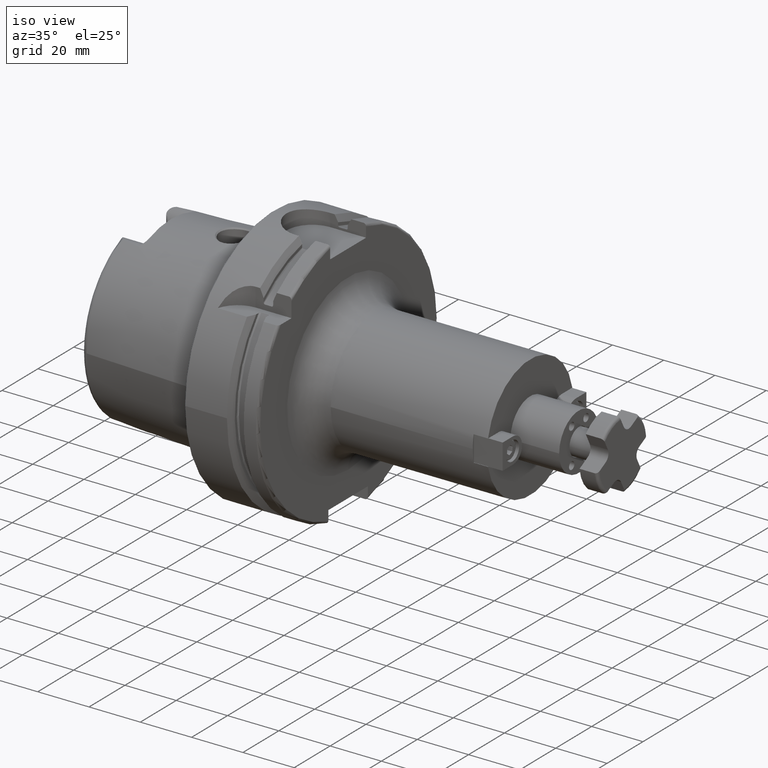
[diagram: clean part render]
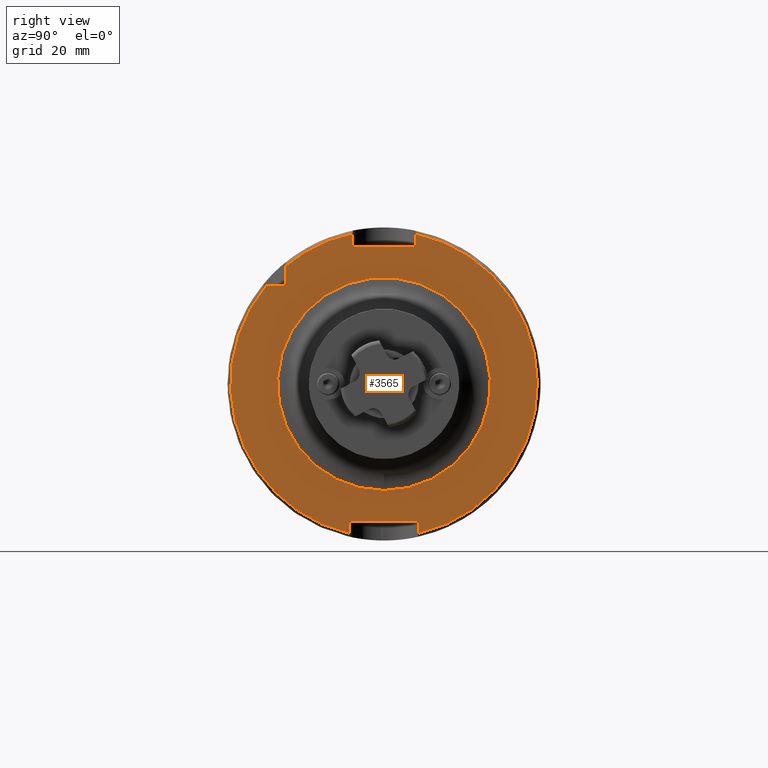
[diagram: tour spotlight — one face highlighted and labeled with its STEP entity id]
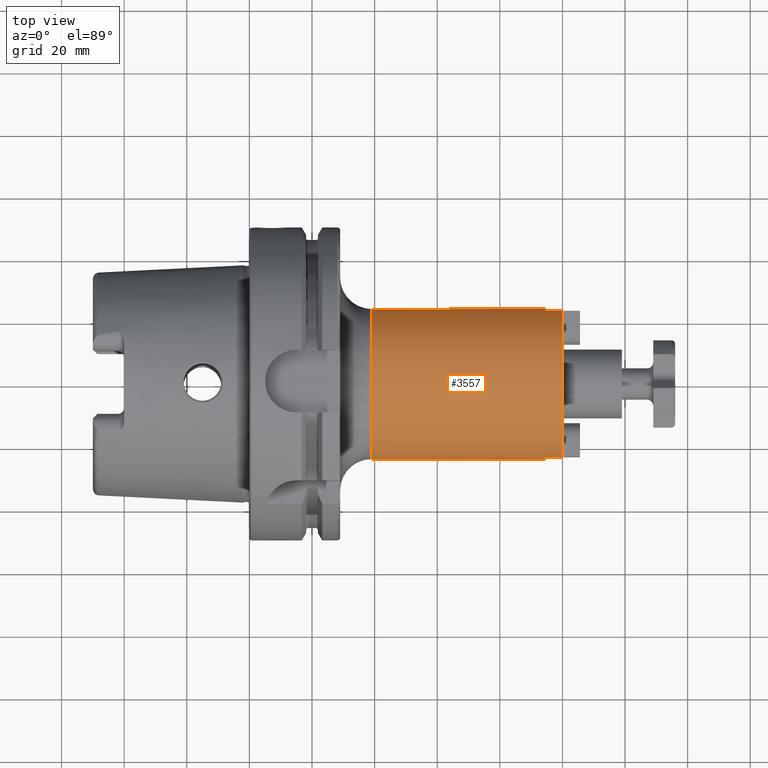
[diagram: tour spotlight — one face highlighted and labeled with its STEP entity id]
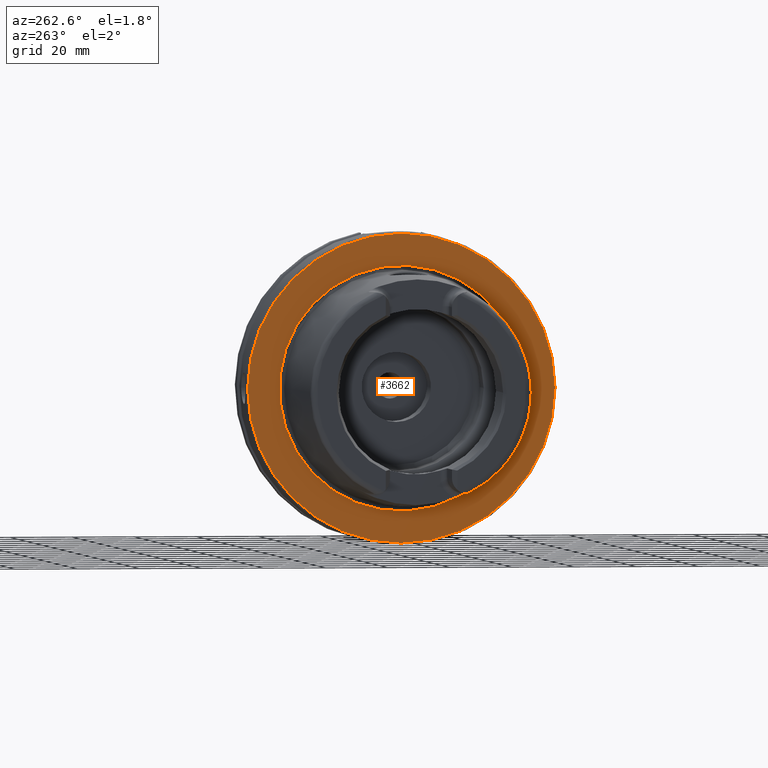
[diagram: tour spotlight — one face highlighted and labeled with its STEP entity id]
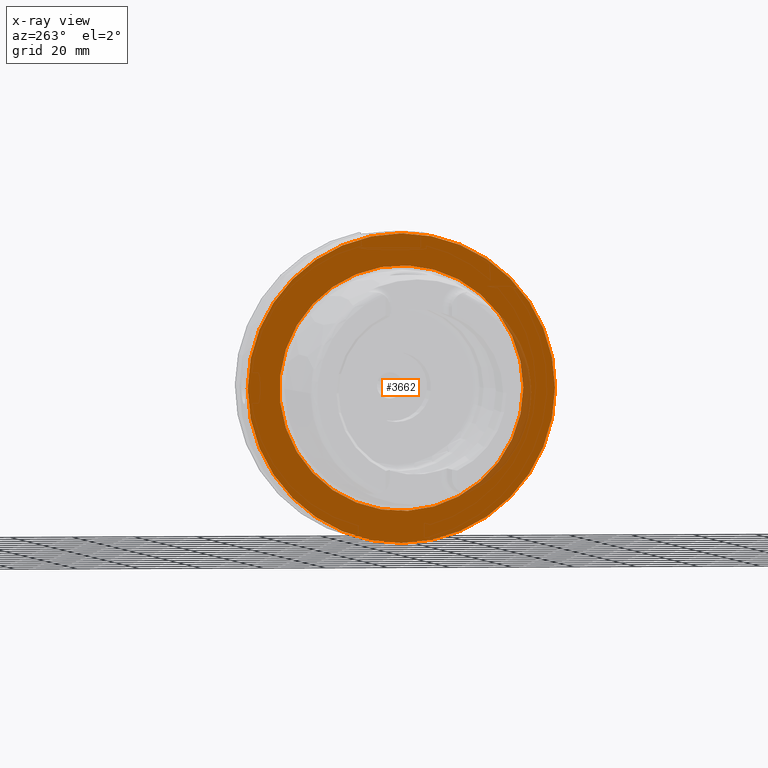
[diagram: x-ray of the same camera — body ghosted, this tour face saturated]
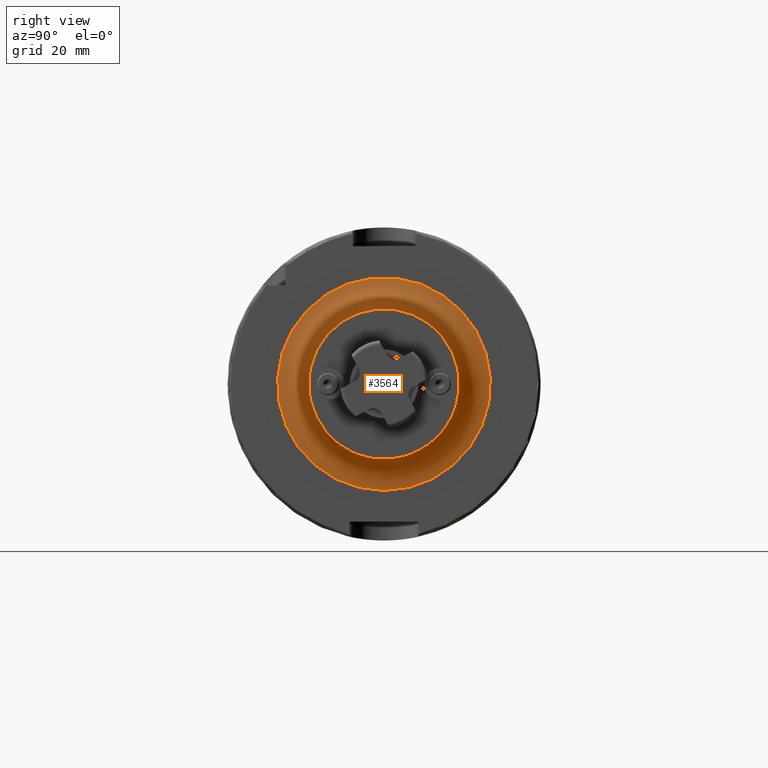
[diagram: tour spotlight — one face highlighted and labeled with its STEP entity id]
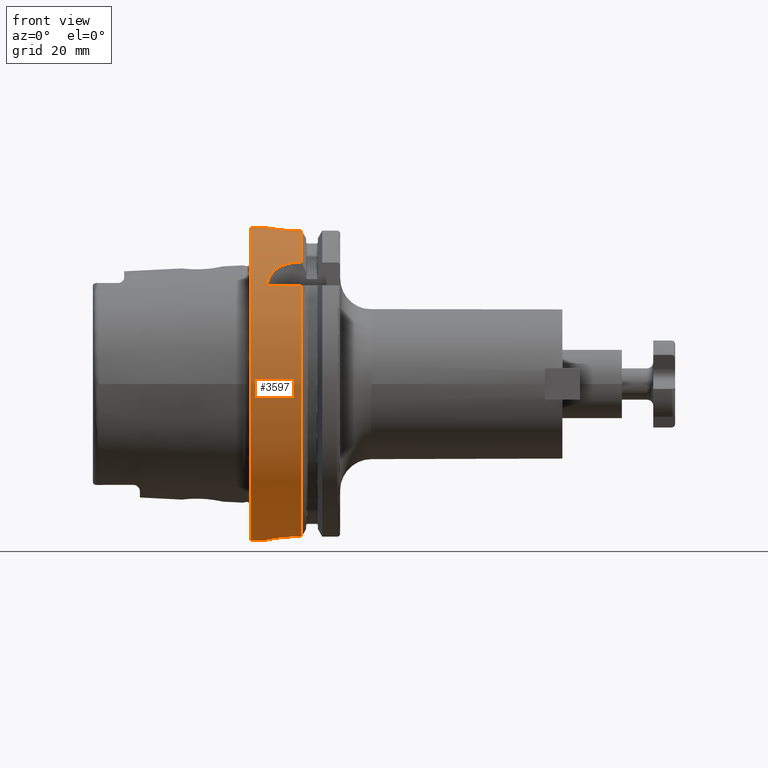
[diagram: tour spotlight — one face highlighted and labeled with its STEP entity id]
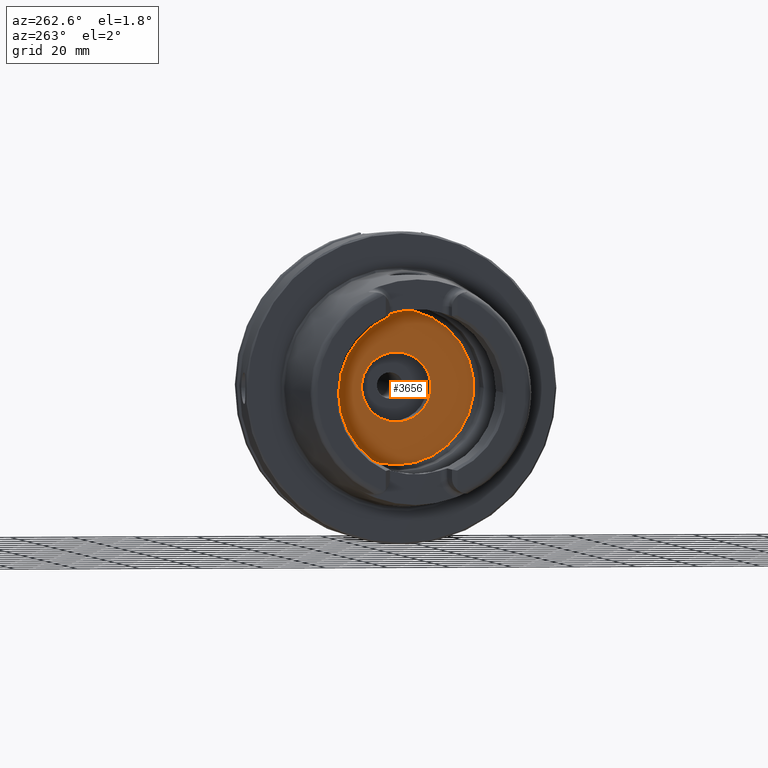
[diagram: tour spotlight — one face highlighted and labeled with its STEP entity id]
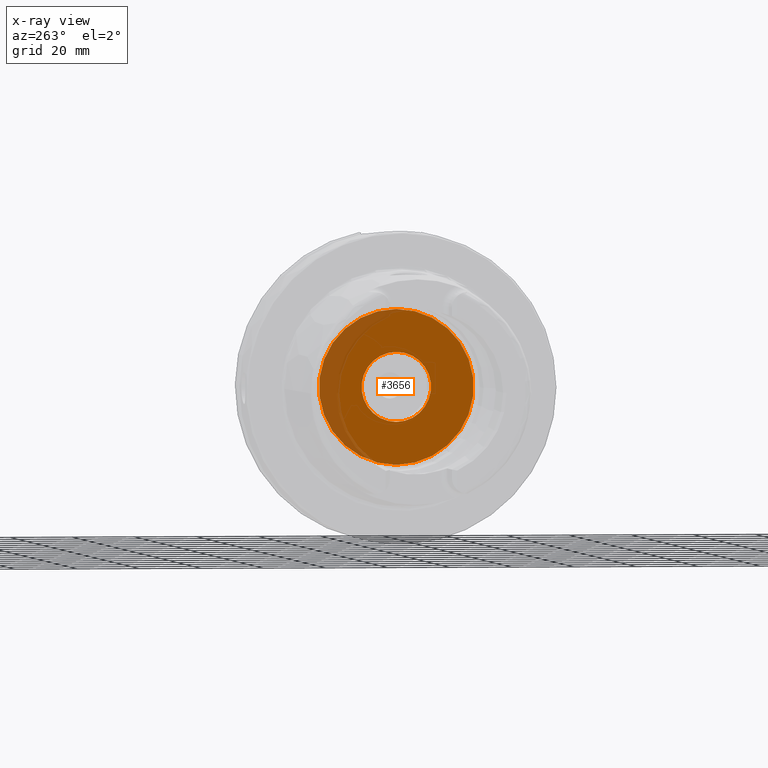
[diagram: x-ray of the same camera — body ghosted, this tour face saturated]
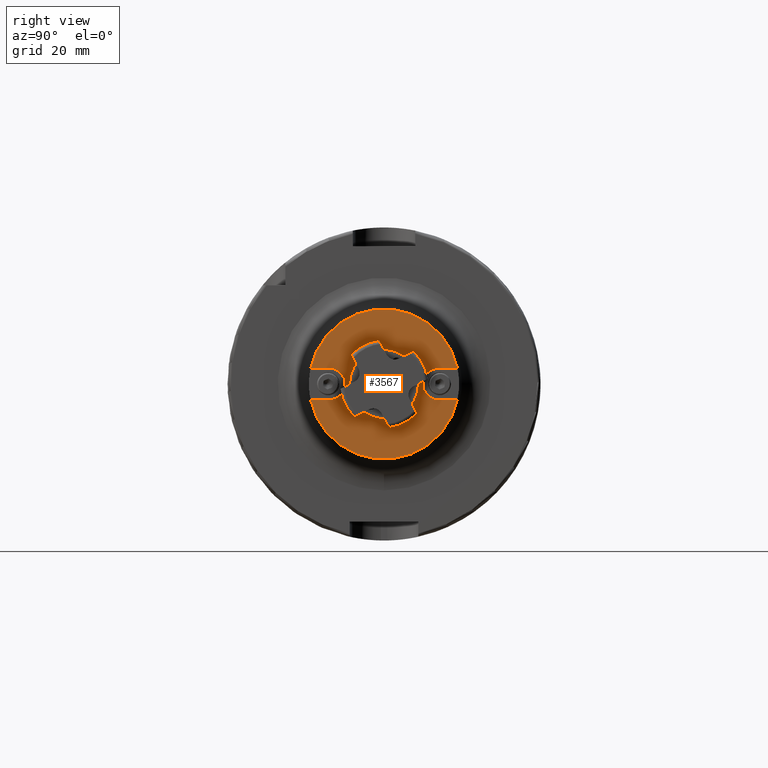
[diagram: tour spotlight — one face highlighted and labeled with its STEP entity id]
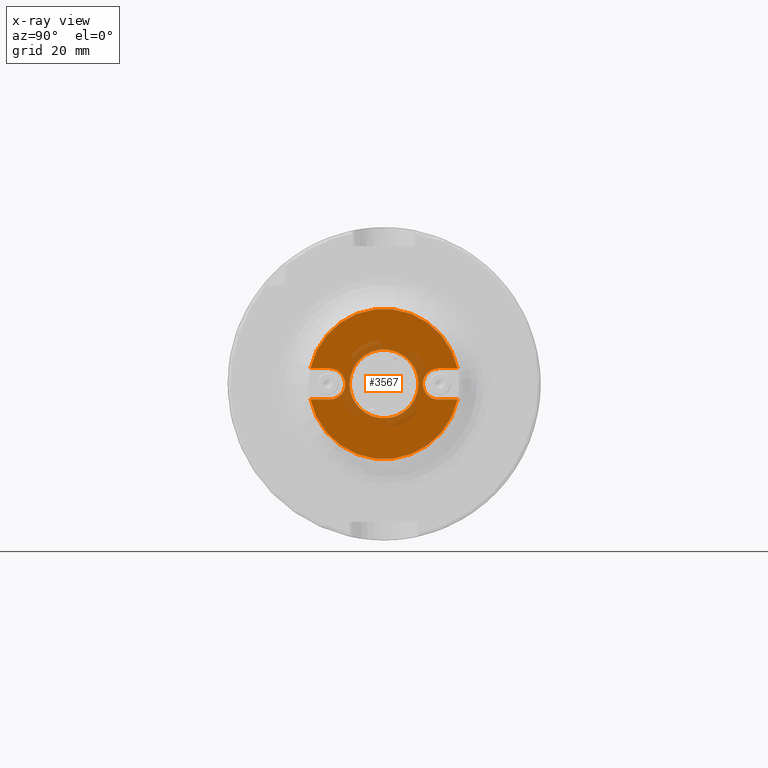
[diagram: x-ray of the same camera — body ghosted, this tour face saturated]
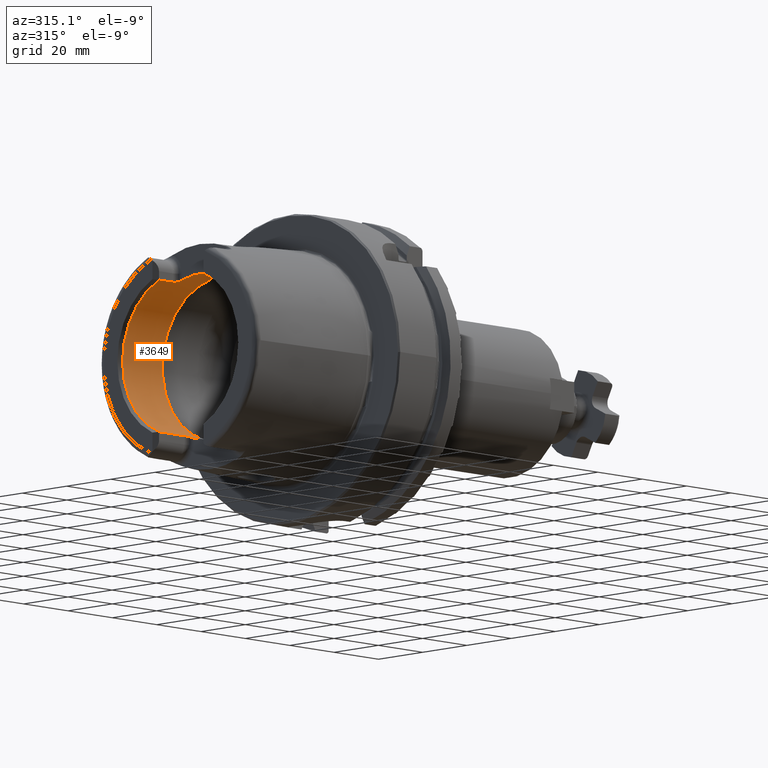
[diagram: tour spotlight — one face highlighted and labeled with its STEP entity id]
A machine part: a face-by-face anatomy tour. The part has 205 B-rep faces; the first image is the clean iso view, then the 8 largest visible faces are spotlighted one at a time (largest first), each with its STEP entity span.

Face 1 — right view, entity #3565. In plain terms, the highlighted planar face has unit normal (1, 0, 0).
Definition (entity closure, byte-faithful):
#676=FACE_BOUND('',#1029,.T.);
#703=PLANE('',#3971);
#845=FACE_OUTER_BOUND('',#1028,.T.);
#1028=EDGE_LOOP('',(#2682,#2683,#2684,#2685,#2686,#2687,#2688,#2689,#2690,
#2691,#2692));
#1029=EDGE_LOOP('',(#2693));
#1237=LINE('',#5623,#1427);
#1238=LINE('',#5627,#1428);
#1239=LINE('',#5629,#1429);
#1240=LINE('',#5631,#1430);
#1241=LINE('',#5635,#1431);
#1242=LINE('',#5637,#1432);
#1243=LINE('',#5639,#1433);
#1244=LINE('',#5642,#1434);
#1427=VECTOR('',#4515,10.);
#1428=VECTOR('',#4518,10.);
#1429=VECTOR('',#4519,10.);
#1430=VECTOR('',#4520,10.);
#1431=VECTOR('',#4523,10.);
#1432=VECTOR('',#4524,10.);
#1433=VECTOR('',#4525,10.);
#1434=VECTOR('',#4528,10.);
#1612=CIRCLE('',#3970,34.);
#1613=CIRCLE('',#3972,49.);
#1614=CIRCLE('',#3973,49.);
#1615=CIRCLE('',#3974,49.);
#1848=VERTEX_POINT('',#5617);
#1849=VERTEX_POINT('',#5621);
#1850=VERTEX_POINT('',#5622);
#1851=VERTEX_POINT('',#5624);
#1852=VERTEX_POINT('',#5626);
#1853=VERTEX_POINT('',#5628);
#1854=VERTEX_POINT('',#5630);
#1855=VERTEX_POINT('',#5632);
#1856=VERTEX_POINT('',#5634);
#1857=VERTEX_POINT('',#5636);
#1858=VERTEX_POINT('',#5638);
#1859=VERTEX_POINT('',#5640);
#2173=EDGE_CURVE('',#1848,#1848,#1612,.T.);
#2174=EDGE_CURVE('',#1849,#1850,#1237,.T.);
#2175=EDGE_CURVE('',#1850,#1851,#1613,.T.);
#2176=EDGE_CURVE('',#1851,#1852,#1238,.T.);
#2177=EDGE_CURVE('',#1852,#1853,#1239,.T.);
#2178=EDGE_CURVE('',#1853,#1854,#1240,.T.);
#2179=EDGE_CURVE('',#1854,#1855,#1614,.T.);
#2180=EDGE_CURVE('',#1855,#1856,#1241,.T.);
#2181=EDGE_CURVE('',#1856,#1857,#1242,.T.);
#2182=EDGE_CURVE('',#1857,#1858,#1243,.T.);
#2183=EDGE_CURVE('',#1858,#1859,#1615,.T.);
#2184=EDGE_CURVE('',#1859,#1849,#1244,.T.);
#2682=ORIENTED_EDGE('',*,*,#2174,.T.);
#2683=ORIENTED_EDGE('',*,*,#2175,.T.);
#2684=ORIENTED_EDGE('',*,*,#2176,.T.);
#2685=ORIENTED_EDGE('',*,*,#2177,.T.);
#2686=ORIENTED_EDGE('',*,*,#2178,.T.);
#2687=ORIENTED_EDGE('',*,*,#2179,.T.);
#2688=ORIENTED_EDGE('',*,*,#2180,.T.);
#2689=ORIENTED_EDGE('',*,*,#2181,.T.);
#2690=ORIENTED_EDGE('',*,*,#2182,.T.);
#2691=ORIENTED_EDGE('',*,*,#2183,.T.);
#2692=ORIENTED_EDGE('',*,*,#2184,.T.);
#2693=ORIENTED_EDGE('',*,*,#2173,.F.);
#3565=ADVANCED_FACE('',(#845,#676),#703,.T.);
#3970=AXIS2_PLACEMENT_3D('',#5619,#4511,#4512);
#3971=AXIS2_PLACEMENT_3D('',#5620,#4513,#4514);
#3972=AXIS2_PLACEMENT_3D('',#5625,#4516,#4517);
#3973=AXIS2_PLACEMENT_3D('',#5633,#4521,#4522);
#3974=AXIS2_PLACEMENT_3D('',#5641,#4526,#4527);
#4511=DIRECTION('center_axis',(1.,0.,0.));
#4512=DIRECTION('ref_axis',(0.,-1.,-1.22464679914735E-16));
#4513=DIRECTION('center_axis',(1.,0.,0.));
#4514=DIRECTION('ref_axis',(0.,0.,-1.));
#4515=DIRECTION('',(0.,-1.,0.));
#4516=DIRECTION('center_axis',(1.,0.,0.));
#4517=DIRECTION('ref_axis',(0.,0.,-1.));
#4518=DIRECTION('',(0.,0.,1.));
#4519=DIRECTION('',(0.,1.,0.));
#4520=DIRECTION('',(0.,0.,-1.));
#4521=DIRECTION('center_axis',(1.,0.,0.));
#4522=DIRECTION('ref_axis',(0.,0.,-1.));
#4523=DIRECTION('',(0.,0.,-1.));
#4524=DIRECTION('',(0.,-1.,0.));
#4525=DIRECTION('',(0.,0.,1.));
#4526=DIRECTION('center_axis',(1.,0.,0.));
#4527=DIRECTION('ref_axis',(0.,0.,-1.));
#4528=DIRECTION('',(0.,0.,-1.));
#5617=CARTESIAN_POINT('',(29.,-4.163799117101E-15,-34.));
#5619=CARTESIAN_POINT('Origin',(29.,0.,0.));
#5620=CARTESIAN_POINT('Origin',(29.,0.,0.));
#5621=CARTESIAN_POINT('',(29.,-31.5,31.5));
#5622=CARTESIAN_POINT('',(29.,-37.5333185316726,31.5));
#5623=CARTESIAN_POINT('',(29.,-18.25,31.5));
#5624=CARTESIAN_POINT('',(29.,-11.,-47.7493455452533));
#5625=CARTESIAN_POINT('Origin',(29.,0.,0.));
#5626=CARTESIAN_POINT('',(29.,-11.,-44.));
#5627=CARTESIAN_POINT('',(29.,-11.,-22.));
#5628=CARTESIAN_POINT('',(29.,11.,-44.));
#5629=CARTESIAN_POINT('',(29.,-5.55111512312578E-16,-44.));
#5630=CARTESIAN_POINT('',(29.,11.,-47.7493455452533));
#5631=CARTESIAN_POINT('',(29.,11.,-22.));
#5632=CARTESIAN_POINT('',(29.,10.,47.9687398208458));
#5633=CARTESIAN_POINT('Origin',(29.,0.,0.));
#5634=CARTESIAN_POINT('',(29.,10.,44.));
#5635=CARTESIAN_POINT('',(29.,10.,22.));
#5636=CARTESIAN_POINT('',(29.,-10.,44.));
#5637=CARTESIAN_POINT('',(29.,0.,44.));
#5638=CARTESIAN_POINT('',(29.,-10.,47.9687398208458));
#5639=CARTESIAN_POINT('',(29.,-10.,22.));
#5640=CARTESIAN_POINT('',(29.,-31.5,37.5333185316726));
#5641=CARTESIAN_POINT('Origin',(29.,0.,0.));
#5642=CARTESIAN_POINT('',(29.,-31.5,15.75));

Face 2 — top view, entity #3557. In plain terms, the highlighted cylindrical surface (bore or boss wall) has radius 24 mm, axis along (1, 0, 0).
Definition (entity closure, byte-faithful):
#773=CYLINDRICAL_SURFACE('',#3952,24.);
#837=FACE_OUTER_BOUND('',#1019,.T.);
#1019=EDGE_LOOP('',(#2640,#2641,#2642,#2643,#2644,#2645,#2646,#2647,#2648,
#2649,#2650,#2651,#2652));
#1216=LINE('',#5545,#1406);
#1224=LINE('',#5574,#1414);
#1226=LINE('',#5578,#1416);
#1227=LINE('',#5585,#1417);
#1228=LINE('',#5589,#1418);
#1406=VECTOR('',#4432,10.);
#1414=VECTOR('',#4462,10.);
#1416=VECTOR('',#4466,24.);
#1417=VECTOR('',#4473,10.);
#1418=VECTOR('',#4476,10.);
#1596=CIRCLE('',#3942,24.);
#1598=CIRCLE('',#3944,24.);
#1602=CIRCLE('',#3953,24.);
#1603=CIRCLE('',#3954,24.);
#1604=CIRCLE('',#3955,24.);
#1605=CIRCLE('',#3956,24.);
#1606=CIRCLE('',#3957,24.);
#1823=VERTEX_POINT('',#5543);
#1824=VERTEX_POINT('',#5544);
#1827=VERTEX_POINT('',#5552);
#1829=VERTEX_POINT('',#5556);
#1834=VERTEX_POINT('',#5573);
#1835=VERTEX_POINT('',#5577);
#1836=VERTEX_POINT('',#5579);
#1837=VERTEX_POINT('',#5582);
#1838=VERTEX_POINT('',#5584);
#1839=VERTEX_POINT('',#5586);
#1840=VERTEX_POINT('',#5588);
#2136=EDGE_CURVE('',#1823,#1824,#1216,.T.);
#2140=EDGE_CURVE('',#1824,#1827,#1596,.T.);
#2143=EDGE_CURVE('',#1827,#1829,#1598,.T.);
#2150=EDGE_CURVE('',#1829,#1834,#1224,.T.);
#2152=EDGE_CURVE('',#1827,#1835,#1226,.T.);
#2153=EDGE_CURVE('',#1836,#1835,#1602,.T.);
#2154=EDGE_CURVE('',#1835,#1836,#1603,.T.);
#2155=EDGE_CURVE('',#1837,#1834,#1604,.T.);
#2156=EDGE_CURVE('',#1837,#1838,#1227,.T.);
#2157=EDGE_CURVE('',#1838,#1839,#1605,.T.);
#2158=EDGE_CURVE('',#1839,#1840,#1228,.T.);
#2159=EDGE_CURVE('',#1823,#1840,#1606,.T.);
#2640=ORIENTED_EDGE('',*,*,#2136,.T.);
#2641=ORIENTED_EDGE('',*,*,#2140,.T.);
#2642=ORIENTED_EDGE('',*,*,#2152,.T.);
#2643=ORIENTED_EDGE('',*,*,#2153,.F.);
#2644=ORIENTED_EDGE('',*,*,#2154,.F.);
#2645=ORIENTED_EDGE('',*,*,#2152,.F.);
#2646=ORIENTED_EDGE('',*,*,#2143,.T.);
#2647=ORIENTED_EDGE('',*,*,#2150,.T.);
#2648=ORIENTED_EDGE('',*,*,#2155,.F.);
#2649=ORIENTED_EDGE('',*,*,#2156,.T.);
#2650=ORIENTED_EDGE('',*,*,#2157,.T.);
#2651=ORIENTED_EDGE('',*,*,#2158,.T.);
#2652=ORIENTED_EDGE('',*,*,#2159,.F.);
#3557=ADVANCED_FACE('',(#837),#773,.T.);
#3942=AXIS2_PLACEMENT_3D('',#5553,#4438,#4439);
#3944=AXIS2_PLACEMENT_3D('',#5558,#4443,#4444);
#3952=AXIS2_PLACEMENT_3D('',#5576,#4464,#4465);
#3953=AXIS2_PLACEMENT_3D('',#5580,#4467,#4468);
#3954=AXIS2_PLACEMENT_3D('',#5581,#4469,#4470);
#3955=AXIS2_PLACEMENT_3D('',#5583,#4471,#4472);
#3956=AXIS2_PLACEMENT_3D('',#5587,#4474,#4475);
#3957=AXIS2_PLACEMENT_3D('',#5590,#4477,#4478);
#4432=DIRECTION('',(-1.,0.,0.));
#4438=DIRECTION('center_axis',(-1.,0.,0.));
#4439=DIRECTION('ref_axis',(0.,1.,0.));
#4443=DIRECTION('center_axis',(-1.,0.,0.));
#4444=DIRECTION('ref_axis',(0.,1.,0.));
#4462=DIRECTION('',(1.,0.,0.));
#4464=DIRECTION('center_axis',(1.,0.,0.));
#4465=DIRECTION('ref_axis',(0.,1.,0.));
#4466=DIRECTION('',(-1.,0.,0.));
#4467=DIRECTION('center_axis',(-1.,0.,0.));
#4468=DIRECTION('ref_axis',(0.,-1.,-1.22464679914735E-16));
#4469=DIRECTION('center_axis',(-1.,0.,0.));
#4470=DIRECTION('ref_axis',(0.,-1.,-1.22464679914735E-16));
#4471=DIRECTION('center_axis',(1.,0.,0.));
#4472=DIRECTION('ref_axis',(0.,0.,-1.));
#4473=DIRECTION('',(-1.,0.,0.));
#4474=DIRECTION('center_axis',(-1.,0.,0.));
#4475=DIRECTION('ref_axis',(0.,1.,0.));
#4476=DIRECTION('',(1.,0.,0.));
#4477=DIRECTION('center_axis',(1.,0.,0.));
#4478=DIRECTION('ref_axis',(0.,0.,-1.));
#5543=CARTESIAN_POINT('',(100.,-23.473389188611,-5.));
#5544=CARTESIAN_POINT('',(94.4,-23.473389188611,-5.));
#5545=CARTESIAN_POINT('',(64.5,-23.473389188611,-5.));
#5552=CARTESIAN_POINT('',(94.4,-24.,-2.93915231795365E-15));
#5553=CARTESIAN_POINT('Origin',(94.4,0.,0.));
#5556=CARTESIAN_POINT('',(94.4,-23.473389188611,5.));
#5558=CARTESIAN_POINT('Origin',(94.4,0.,0.));
#5573=CARTESIAN_POINT('',(100.,-23.473389188611,5.));
#5574=CARTESIAN_POINT('',(64.5,-23.473389188611,5.));
#5576=CARTESIAN_POINT('Origin',(64.5,0.,0.));
#5577=CARTESIAN_POINT('',(39.,-24.,-2.93915231795365E-15));
#5578=CARTESIAN_POINT('',(64.5,-24.,-2.93915231795365E-15));
#5579=CARTESIAN_POINT('',(39.,-2.93915231795365E-15,-24.));
#5580=CARTESIAN_POINT('Origin',(39.,0.,0.));
#5581=CARTESIAN_POINT('Origin',(39.,0.,0.));
#5582=CARTESIAN_POINT('',(100.,23.473389188611,5.));
#5583=CARTESIAN_POINT('Origin',(100.,0.,0.));
#5584=CARTESIAN_POINT('',(94.4,23.473389188611,5.));
#5585=CARTESIAN_POINT('',(64.5,23.473389188611,5.));
#5586=CARTESIAN_POINT('',(94.4,23.473389188611,-5.));
#5587=CARTESIAN_POINT('Origin',(94.4,0.,0.));
#5588=CARTESIAN_POINT('',(100.,23.473389188611,-5.));
#5589=CARTESIAN_POINT('',(64.5,23.473389188611,-5.));
#5590=CARTESIAN_POINT('Origin',(100.,0.,0.));

Face 3 — auxiliary view, entity #3662. An x-ray twin of the same camera follows (body ghosted, this face saturated) — the face is partly hidden behind the body. In plain terms, the highlighted planar face has unit normal (-1, 0, 0).
Definition (entity closure, byte-faithful):
#690=FACE_BOUND('',#1140,.T.);
#738=PLANE('',#4179);
#942=FACE_OUTER_BOUND('',#1139,.T.);
#1139=EDGE_LOOP('',(#3227));
#1140=EDGE_LOOP('',(#3228));
#1717=CIRCLE('',#4178,39.2747800249997);
#1718=CIRCLE('',#4180,49.5);
#2033=VERTEX_POINT('',#7054);
#2034=VERTEX_POINT('',#7058);
#2450=EDGE_CURVE('',#2033,#2033,#1717,.T.);
#2451=EDGE_CURVE('',#2034,#2034,#1718,.T.);
#3227=ORIENTED_EDGE('',*,*,#2451,.F.);
#3228=ORIENTED_EDGE('',*,*,#2450,.T.);
#3662=ADVANCED_FACE('',(#942,#690),#738,.T.);
#4178=AXIS2_PLACEMENT_3D('',#7056,#5023,#5024);
#4179=AXIS2_PLACEMENT_3D('',#7057,#5025,#5026);
#4180=AXIS2_PLACEMENT_3D('',#7059,#5027,#5028);
#5023=DIRECTION('center_axis',(1.,0.,0.));
#5024=DIRECTION('ref_axis',(0.,0.,-1.));
#5025=DIRECTION('center_axis',(-1.,0.,0.));
#5026=DIRECTION('ref_axis',(0.,0.,1.));
#5027=DIRECTION('center_axis',(1.,0.,0.));
#5028=DIRECTION('ref_axis',(0.,0.,-1.));
#7054=CARTESIAN_POINT('',(-1.04950770296597E-15,-39.2747800249997,-4.80977336448322E-15));
#7056=CARTESIAN_POINT('Origin',(0.,0.,0.));
#7057=CARTESIAN_POINT('Origin',(0.,49.5,0.));
#7058=CARTESIAN_POINT('',(1.28369537222284E-15,-49.5,-6.0620016557794E-15));
#7059=CARTESIAN_POINT('Origin',(0.,0.,0.));

Face 4 — right view, entity #3564. In plain terms, the highlighted toroidal blend (fillet) surface has major radius 34 mm and minor (blend) radius 10 mm.
Definition (entity closure, byte-faithful):
#643=TOROIDAL_SURFACE('',#3968,34.,10.);
#844=FACE_OUTER_BOUND('',#1027,.T.);
#1027=EDGE_LOOP('',(#2677,#2678,#2679,#2680,#2681));
#1602=CIRCLE('',#3953,24.);
#1603=CIRCLE('',#3954,24.);
#1611=CIRCLE('',#3969,10.);
#1612=CIRCLE('',#3970,34.);
#1835=VERTEX_POINT('',#5577);
#1836=VERTEX_POINT('',#5579);
#1848=VERTEX_POINT('',#5617);
#2153=EDGE_CURVE('',#1836,#1835,#1602,.T.);
#2154=EDGE_CURVE('',#1835,#1836,#1603,.T.);
#2172=EDGE_CURVE('',#1836,#1848,#1611,.T.);
#2173=EDGE_CURVE('',#1848,#1848,#1612,.T.);
#2677=ORIENTED_EDGE('',*,*,#2154,.T.);
#2678=ORIENTED_EDGE('',*,*,#2172,.T.);
#2679=ORIENTED_EDGE('',*,*,#2173,.T.);
#2680=ORIENTED_EDGE('',*,*,#2172,.F.);
#2681=ORIENTED_EDGE('',*,*,#2153,.T.);
#3564=ADVANCED_FACE('',(#844),#643,.F.);
#3953=AXIS2_PLACEMENT_3D('',#5580,#4467,#4468);
#3954=AXIS2_PLACEMENT_3D('',#5581,#4469,#4470);
#3968=AXIS2_PLACEMENT_3D('',#5616,#4507,#4508);
#3969=AXIS2_PLACEMENT_3D('',#5618,#4509,#4510);
#3970=AXIS2_PLACEMENT_3D('',#5619,#4511,#4512);
#4467=DIRECTION('center_axis',(-1.,0.,0.));
#4468=DIRECTION('ref_axis',(0.,-1.,-1.22464679914735E-16));
#4469=DIRECTION('center_axis',(-1.,0.,0.));
#4470=DIRECTION('ref_axis',(0.,-1.,-1.22464679914735E-16));
#4507=DIRECTION('center_axis',(-1.,0.,0.));
#4508=DIRECTION('ref_axis',(0.,0.,1.));
#4509=DIRECTION('center_axis',(0.,-1.,1.22464679914735E-16));
#4510=DIRECTION('ref_axis',(0.,-1.22464679914735E-16,-1.));
#4511=DIRECTION('center_axis',(1.,0.,0.));
#4512=DIRECTION('ref_axis',(0.,-1.,-1.22464679914735E-16));
#5577=CARTESIAN_POINT('',(39.,-24.,-2.93915231795365E-15));
#5579=CARTESIAN_POINT('',(39.,-2.93915231795365E-15,-24.));
#5580=CARTESIAN_POINT('Origin',(39.,0.,0.));
#5581=CARTESIAN_POINT('Origin',(39.,0.,0.));
#5616=CARTESIAN_POINT('Origin',(39.,0.,0.));
#5617=CARTESIAN_POINT('',(29.,-4.163799117101E-15,-34.));
#5618=CARTESIAN_POINT('Origin',(39.,-4.163799117101E-15,-34.));
#5619=CARTESIAN_POINT('Origin',(29.,0.,0.));

Face 5 — front view, entity #3597. In plain terms, the highlighted cylindrical surface (bore or boss wall) has radius 50 mm, axis along (1, 0, 0).
Definition (entity closure, byte-faithful):
#598=B_SPLINE_CURVE_WITH_KNOTS('',3,(#6410,#6411,#6412,#6413,#6414,#6415,
#6416,#6417,#6418,#6419,#6420,#6421,#6422,#6423,#6424,#6425,#6426,#6427,
#6428,#6429,#6430,#6431,#6432,#6433,#6434,#6435),.UNSPECIFIED.,.F.,.F.,
(4,2,2,2,2,2,2,2,2,2,2,2,4),(0.,0.188478911015149,0.376957822030298,0.565436091508923,
0.753914360987547,0.942392630466172,1.1308708999448,1.31934981095995,1.50782872197509,
1.69630763299024,1.88478654400539,2.07326481348402,2.26174308296264),
 .UNSPECIFIED.);
#599=B_SPLINE_CURVE_WITH_KNOTS('',3,(#6436,#6437,#6438,#6439,#6440,#6441,
#6442,#6443,#6444,#6445),.UNSPECIFIED.,.F.,.F.,(4,2,2,2,4),(2.26174308296264,
2.45022135244127,2.63869962191989,2.82717853293504,3.01565744395019),
 .UNSPECIFIED.);
#600=B_SPLINE_CURVE_WITH_KNOTS('',3,(#6449,#6450,#6451,#6452,#6453,#6454,
#6455,#6456,#6457,#6458,#6459,#6460),.UNSPECIFIED.,.F.,.F.,(4,2,2,2,2,4),
(1.13213255574021,1.59216410027009,1.87572541272146,2.15928672517283,2.38471683342296,
2.61014694167308),.UNSPECIFIED.);
#607=B_SPLINE_CURVE_WITH_KNOTS('',3,(#6573,#6574,#6575,#6576,#6577,#6578,
#6579,#6580,#6581,#6582,#6583,#6584,#6585,#6586,#6587,#6588,#6589,#6590),
 .UNSPECIFIED.,.F.,.F.,(4,2,2,2,2,2,2,2,4),(0.,0.377795255890194,0.755590511780389,
1.13336459804459,1.51113868430879,1.88891277057299,2.26668685683718,2.64448211272738,
3.02227736861757),.UNSPECIFIED.);
#608=B_SPLINE_CURVE_WITH_KNOTS('',3,(#6598,#6599,#6600,#6601,#6602,#6603,
#6604,#6605,#6606,#6607),.UNSPECIFIED.,.F.,.F.,(4,2,2,2,4),(0.,0.377863193874929,
0.755726387749858,1.13417752669663,1.51262866564341),.UNSPECIFIED.);
#609=B_SPLINE_CURVE_WITH_KNOTS('',3,(#6611,#6612,#6613,#6614,#6615,#6616,
#6617,#6618,#6619,#6620),.UNSPECIFIED.,.F.,.F.,(4,2,2,2,4),(1.50996806152532,
1.8884192004721,2.26687033941887,2.6447335332938,3.02259672716873),
 .UNSPECIFIED.);
#686=FACE_BOUND('',#1071,.T.);
#787=CYLINDRICAL_SURFACE('',#4049,50.);
#877=FACE_OUTER_BOUND('',#1070,.T.);
#1070=EDGE_LOOP('',(#2889,#2890,#2891,#2892,#2893,#2894,#2895,#2896,#2897,
#2898,#2899,#2900,#2901,#2902,#2903,#2904,#2905,#2906));
#1071=EDGE_LOOP('',(#2907,#2908));
#1274=LINE('',#6466,#1464);
#1280=LINE('',#6518,#1470);
#1285=LINE('',#6571,#1475);
#1286=LINE('',#6592,#1476);
#1287=LINE('',#6596,#1477);
#1288=LINE('',#6622,#1478);
#1289=LINE('',#6626,#1479);
#1464=VECTOR('',#4704,10.);
#1470=VECTOR('',#4712,10.);
#1475=VECTOR('',#4721,10.);
#1476=VECTOR('',#4722,10.);
#1477=VECTOR('',#4725,10.);
#1478=VECTOR('',#4728,10.);
#1479=VECTOR('',#4731,50.);
#1653=CIRCLE('',#4050,50.);
#1654=CIRCLE('',#4051,50.);
#1655=CIRCLE('',#4052,50.);
#1656=CIRCLE('',#4053,50.);
#1657=CIRCLE('',#4054,50.);
#1658=CIRCLE('',#4055,50.);
#1933=VERTEX_POINT('',#6407);
#1934=VERTEX_POINT('',#6409);
#1935=VERTEX_POINT('',#6447);
#1936=VERTEX_POINT('',#6448);
#1938=VERTEX_POINT('',#6465);
#1947=VERTEX_POINT('',#6517);
#1956=VERTEX_POINT('',#6568);
#1957=VERTEX_POINT('',#6570);
#1958=VERTEX_POINT('',#6572);
#1959=VERTEX_POINT('',#6591);
#1960=VERTEX_POINT('',#6593);
#1961=VERTEX_POINT('',#6595);
#1962=VERTEX_POINT('',#6597);
#1963=VERTEX_POINT('',#6608);
#1964=VERTEX_POINT('',#6610);
#1965=VERTEX_POINT('',#6621);
#1966=VERTEX_POINT('',#6623);
#1967=VERTEX_POINT('',#6625);
#2284=EDGE_CURVE('',#1934,#1933,#598,.T.);
#2285=EDGE_CURVE('',#1933,#1934,#599,.T.);
#2286=EDGE_CURVE('',#1935,#1936,#600,.T.);
#2289=EDGE_CURVE('',#1936,#1938,#1274,.T.);
#2300=EDGE_CURVE('',#1947,#1935,#1280,.T.);
#2310=EDGE_CURVE('',#1956,#1938,#1653,.T.);
#2311=EDGE_CURVE('',#1956,#1957,#1285,.T.);
#2312=EDGE_CURVE('',#1957,#1958,#607,.T.);
#2313=EDGE_CURVE('',#1958,#1959,#1286,.T.);
#2314=EDGE_CURVE('',#1960,#1959,#1654,.T.);
#2315=EDGE_CURVE('',#1960,#1961,#1287,.T.);
#2316=EDGE_CURVE('',#1961,#1962,#608,.T.);
#2317=EDGE_CURVE('',#1962,#1963,#1655,.T.);
#2318=EDGE_CURVE('',#1963,#1964,#609,.T.);
#2319=EDGE_CURVE('',#1964,#1965,#1288,.T.);
#2320=EDGE_CURVE('',#1966,#1965,#1656,.T.);
#2321=EDGE_CURVE('',#1966,#1967,#1289,.T.);
#2322=EDGE_CURVE('',#1967,#1967,#1657,.T.);
#2323=EDGE_CURVE('',#1947,#1966,#1658,.T.);
#2889=ORIENTED_EDGE('',*,*,#2300,.T.);
#2890=ORIENTED_EDGE('',*,*,#2286,.T.);
#2891=ORIENTED_EDGE('',*,*,#2289,.T.);
#2892=ORIENTED_EDGE('',*,*,#2310,.F.);
#2893=ORIENTED_EDGE('',*,*,#2311,.T.);
#2894=ORIENTED_EDGE('',*,*,#2312,.T.);
#2895=ORIENTED_EDGE('',*,*,#2313,.T.);
#2896=ORIENTED_EDGE('',*,*,#2314,.F.);
#2897=ORIENTED_EDGE('',*,*,#2315,.T.);
#2898=ORIENTED_EDGE('',*,*,#2316,.T.);
#2899=ORIENTED_EDGE('',*,*,#2317,.T.);
#2900=ORIENTED_EDGE('',*,*,#2318,.T.);
#2901=ORIENTED_EDGE('',*,*,#2319,.T.);
#2902=ORIENTED_EDGE('',*,*,#2320,.F.);
#2903=ORIENTED_EDGE('',*,*,#2321,.T.);
#2904=ORIENTED_EDGE('',*,*,#2322,.T.);
#2905=ORIENTED_EDGE('',*,*,#2321,.F.);
#2906=ORIENTED_EDGE('',*,*,#2323,.F.);
#2907=ORIENTED_EDGE('',*,*,#2284,.T.);
#2908=ORIENTED_EDGE('',*,*,#2285,.T.);
#3597=ADVANCED_FACE('',(#877,#686),#787,.T.);
#4049=AXIS2_PLACEMENT_3D('',#6567,#4717,#4718);
#4050=AXIS2_PLACEMENT_3D('',#6569,#4719,#4720);
#4051=AXIS2_PLACEMENT_3D('',#6594,#4723,#4724);
#4052=AXIS2_PLACEMENT_3D('',#6609,#4726,#4727);
#4053=AXIS2_PLACEMENT_3D('',#6624,#4729,#4730);
#4054=AXIS2_PLACEMENT_3D('',#6627,#4732,#4733);
#4055=AXIS2_PLACEMENT_3D('',#6628,#4734,#4735);
#4704=DIRECTION('',(1.,0.,0.));
#4712=DIRECTION('',(-1.,0.,0.));
#4717=DIRECTION('center_axis',(1.,0.,0.));
#4718=DIRECTION('ref_axis',(0.,1.,0.));
#4719=DIRECTION('center_axis',(1.,0.,0.));
#4720=DIRECTION('ref_axis',(0.,0.,-1.));
#4721=DIRECTION('',(-1.,0.,0.));
#4722=DIRECTION('',(1.,0.,0.));
#4723=DIRECTION('center_axis',(1.,0.,0.));
#4724=DIRECTION('ref_axis',(0.,0.,-1.));
#4725=DIRECTION('',(-1.,0.,0.));
#4726=DIRECTION('center_axis',(-1.,0.,0.));
#4727=DIRECTION('ref_axis',(0.,1.,0.));
#4728=DIRECTION('',(1.,0.,0.));
#4729=DIRECTION('center_axis',(1.,0.,0.));
#4730=DIRECTION('ref_axis',(0.,0.,-1.));
#4731=DIRECTION('',(-1.,0.,0.));
#4732=DIRECTION('center_axis',(1.,0.,0.));
#4733=DIRECTION('ref_axis',(0.,0.,-1.));
#4734=DIRECTION('center_axis',(1.,0.,0.));
#4735=DIRECTION('ref_axis',(0.,0.,-1.));
#6407=CARTESIAN_POINT('',(12.,50.,-6.12323399573677E-16));
#6409=CARTESIAN_POINT('',(6.99999999999999,49.749371855331,5.));
#6410=CARTESIAN_POINT('Ctrl Pts',(6.99999999999999,49.749371855331,5.));
#6411=CARTESIAN_POINT('Ctrl Pts',(6.37173696328283,49.749371855331,5.));
#6412=CARTESIAN_POINT('Ctrl Pts',(5.70188570880885,49.7624993987098,4.87435544587055));
#6413=CARTESIAN_POINT('Ctrl Pts',(4.4701142477173,49.8098541153698,4.36395693611591));
#6414=CARTESIAN_POINT('Ctrl Pts',(3.90815809537484,49.8433908660961,3.97922590724033));
#6415=CARTESIAN_POINT('Ctrl Pts',(3.02077560297968,49.9062957431473,3.09184341484517));
#6416=CARTESIAN_POINT('Ctrl Pts',(2.63604339567929,49.9397591808605,2.52988660036719));
#6417=CARTESIAN_POINT('Ctrl Pts',(2.12564400622109,49.9869460568296,1.29811292154946));
#6418=CARTESIAN_POINT('Ctrl Pts',(1.99999999999999,50.,0.628260898262081));
#6419=CARTESIAN_POINT('Ctrl Pts',(1.99999999999999,50.,-0.628260898262082));
#6420=CARTESIAN_POINT('Ctrl Pts',(2.12564400622109,49.9869460568296,-1.29811292154946));
#6421=CARTESIAN_POINT('Ctrl Pts',(2.63604339567929,49.9397591808605,-2.52988660036719));
#6422=CARTESIAN_POINT('Ctrl Pts',(3.02077560297968,49.9062957431473,-3.09184341484517));
#6423=CARTESIAN_POINT('Ctrl Pts',(3.90815809537484,49.8433908660961,-3.97922590724033));
#6424=CARTESIAN_POINT('Ctrl Pts',(4.4701142477173,49.8098541153698,-4.36395693611591));
#6425=CARTESIAN_POINT('Ctrl Pts',(5.70188570880885,49.7624993987098,-4.87435544587055));
#6426=CARTESIAN_POINT('Ctrl Pts',(6.37173696328283,49.749371855331,-5.));
#6427=CARTESIAN_POINT('Ctrl Pts',(7.62826303671716,49.749371855331,-5.));
#6428=CARTESIAN_POINT('Ctrl Pts',(8.29811429119113,49.7624993987098,-4.87435544587055));
#6429=CARTESIAN_POINT('Ctrl Pts',(9.52988575228269,49.8098541153698,-4.36395693611591));
#6430=CARTESIAN_POINT('Ctrl Pts',(10.0918419046251,49.8433908660961,-3.97922590724033));
#6431=CARTESIAN_POINT('Ctrl Pts',(10.9792243970203,49.9062957431473,-3.09184341484517));
#6432=CARTESIAN_POINT('Ctrl Pts',(11.3639566043207,49.9397591808605,-2.52988660036719));
#6433=CARTESIAN_POINT('Ctrl Pts',(11.8743559937789,49.9869460568296,-1.29811292154947));
#6434=CARTESIAN_POINT('Ctrl Pts',(12.,50.,-0.628260898262083));
#6435=CARTESIAN_POINT('Ctrl Pts',(12.,50.,-5.55111512312578E-16));
#6436=CARTESIAN_POINT('Ctrl Pts',(12.,50.,-5.55111512312578E-16));
#6437=CARTESIAN_POINT('Ctrl Pts',(12.,50.,0.628260898262082));
#6438=CARTESIAN_POINT('Ctrl Pts',(11.8743559937789,49.9869460568296,1.29811292154946));
#6439=CARTESIAN_POINT('Ctrl Pts',(11.3639566043207,49.9397591808605,2.52988660036719));
#6440=CARTESIAN_POINT('Ctrl Pts',(10.9792243970203,49.9062957431473,3.09184341484517));
#6441=CARTESIAN_POINT('Ctrl Pts',(10.0918419046251,49.8433908660961,3.97922590724033));
#6442=CARTESIAN_POINT('Ctrl Pts',(9.52988575228269,49.8098541153698,4.36395693611591));
#6443=CARTESIAN_POINT('Ctrl Pts',(8.29811429119113,49.7624993987098,4.87435544587055));
#6444=CARTESIAN_POINT('Ctrl Pts',(7.62826303671716,49.749371855331,5.));
#6445=CARTESIAN_POINT('Ctrl Pts',(6.99999999999999,49.749371855331,5.));
#6447=CARTESIAN_POINT('',(5.36310214079494,-38.8297566307078,31.5));
#6448=CARTESIAN_POINT('',(15.,-31.5,38.8297566307078));
#6449=CARTESIAN_POINT('Ctrl Pts',(5.36310214079494,-38.8297566307078,31.5));
#6450=CARTESIAN_POINT('Ctrl Pts',(5.63795050776221,-37.8378299510303,32.722738779917));
#6451=CARTESIAN_POINT('Ctrl Pts',(6.08245260240086,-36.8264130955983,33.8486741193789));
#6452=CARTESIAN_POINT('Ctrl Pts',(7.14730321206235,-35.2667182945212,35.4540138707062));
#6453=CARTESIAN_POINT('Ctrl Pts',(7.68113760815893,-34.6306580359392,36.0741351437033));
#6454=CARTESIAN_POINT('Ctrl Pts',(8.97436758466638,-33.4722127660808,37.1515365058173));
#6455=CARTESIAN_POINT('Ctrl Pts',(9.73574998094174,-32.9521170857844,37.6088911783762));
#6456=CARTESIAN_POINT('Ctrl Pts',(11.1521999725134,-32.2432973482077,38.2170233500259));
#6457=CARTESIAN_POINT('Ctrl Pts',(11.8888981504148,-31.9629772872452,38.4503075998006));
#6458=CARTESIAN_POINT('Ctrl Pts',(13.4369856471743,-31.5908755949743,38.7566077888176));
#6459=CARTESIAN_POINT('Ctrl Pts',(14.2485663058329,-31.5,38.8297566307078));
#6460=CARTESIAN_POINT('Ctrl Pts',(15.,-31.5,38.8297566307078));
#6465=CARTESIAN_POINT('',(16.7379709790786,-31.5,38.8297566307078));
#6466=CARTESIAN_POINT('',(8.61898548953931,-31.5,38.8297566307078));
#6517=CARTESIAN_POINT('',(16.7379709790786,-38.8297566307078,31.5));
#6518=CARTESIAN_POINT('',(8.61898548953931,-38.8297566307078,31.5));
#6567=CARTESIAN_POINT('Origin',(8.61898548953931,0.,0.));
#6568=CARTESIAN_POINT('',(16.7379709790786,-10.,48.9897948556636));
#6569=CARTESIAN_POINT('Origin',(16.7379709790786,0.,0.));
#6570=CARTESIAN_POINT('',(15.,-10.,48.9897948556636));
#6571=CARTESIAN_POINT('',(8.61898548953931,-10.,48.9897948556636));
#6572=CARTESIAN_POINT('',(15.,10.,48.9897948556636));
#6573=CARTESIAN_POINT('Ctrl Pts',(15.,-10.,48.9897948556636));
#6574=CARTESIAN_POINT('Ctrl Pts',(13.740682480366,-10.,48.9897948556636));
#6575=CARTESIAN_POINT('Ctrl Pts',(12.3998222283811,-9.74762796248614,49.0433876618447));
#6576=CARTESIAN_POINT('Ctrl Pts',(9.93707994969945,-8.72605417648382,49.2354150792771));
#6577=CARTESIAN_POINT('Ctrl Pts',(8.81489539818993,-7.95703102192089,49.3709085101933));
#6578=CARTESIAN_POINT('Ctrl Pts',(7.04301862271998,-6.18515424645094,49.6240337638318));
#6579=CARTESIAN_POINT('Ctrl Pts',(6.27395658455242,-5.06294861197626,49.7583347151863));
#6580=CARTESIAN_POINT('Ctrl Pts',(5.25235457764165,-2.60013306081865,49.9476188647081));
#6581=CARTESIAN_POINT('Ctrl Pts',(4.99999999999999,-1.259246954214,50.));
#6582=CARTESIAN_POINT('Ctrl Pts',(4.99999999999999,1.259246954214,50.));
#6583=CARTESIAN_POINT('Ctrl Pts',(5.25235457764165,2.60013306081865,49.9476188647081));
#6584=CARTESIAN_POINT('Ctrl Pts',(6.27395658455242,5.06294861197626,49.7583347151863));
#6585=CARTESIAN_POINT('Ctrl Pts',(7.04301862271998,6.18515424645094,49.6240337638318));
#6586=CARTESIAN_POINT('Ctrl Pts',(8.81489539818993,7.95703102192089,49.3709085101933));
#6587=CARTESIAN_POINT('Ctrl Pts',(9.93707994969945,8.72605417648382,49.2354150792771));
#6588=CARTESIAN_POINT('Ctrl Pts',(12.3998222283811,9.74762796248614,49.0433876618447));
#6589=CARTESIAN_POINT('Ctrl Pts',(13.740682480366,10.,48.9897948556636));
#6590=CARTESIAN_POINT('Ctrl Pts',(15.,10.,48.9897948556636));
#6591=CARTESIAN_POINT('',(16.7379709790786,10.,48.9897948556636));
#6592=CARTESIAN_POINT('',(8.61898548953931,10.,48.9897948556636));
#6593=CARTESIAN_POINT('',(16.7379709790786,11.,-48.7749935930288));
#6594=CARTESIAN_POINT('Origin',(16.7379709790786,0.,0.));
#6595=CARTESIAN_POINT('',(15.,11.,-48.7749935930288));
#6596=CARTESIAN_POINT('',(8.61898548953931,11.,-48.7749935930288));
#6597=CARTESIAN_POINT('',(4.99999999999999,0.999999999999997,-49.9899989998));
#6598=CARTESIAN_POINT('Ctrl Pts',(15.,11.,-48.7749935930288));
#6599=CARTESIAN_POINT('Ctrl Pts',(13.7404560204169,11.,-48.7749935930288));
#6600=CARTESIAN_POINT('Ctrl Pts',(12.3998213084084,10.7475295248871,-48.8340306344483));
#6601=CARTESIAN_POINT('Ctrl Pts',(9.9383361278342,9.72667325975831,-49.0475663096823));
#6602=CARTESIAN_POINT('Ctrl Pts',(8.81713821454868,8.95850056252305,-49.1990678796225));
#6603=CARTESIAN_POINT('Ctrl Pts',(7.04551978193545,7.18842719108522,-49.4887060645896));
#6604=CARTESIAN_POINT('Ctrl Pts',(6.27594389465425,6.06650925178,-49.6460359942126));
#6605=CARTESIAN_POINT('Ctrl Pts',(5.25307325920197,3.60309260864685,-49.8853600567865));
#6606=CARTESIAN_POINT('Ctrl Pts',(4.99999999999999,2.26125147049483,-49.9647689238702));
#6607=CARTESIAN_POINT('Ctrl Pts',(4.99999999999999,1.,-49.9899989998));
#6608=CARTESIAN_POINT('',(4.99999999999999,-1.00000000000001,-49.9899989998));
#6609=CARTESIAN_POINT('Origin',(4.99999999999999,0.,0.));
#6610=CARTESIAN_POINT('',(15.,-11.,-48.7749935930288));
#6611=CARTESIAN_POINT('Ctrl Pts',(4.99999999999999,-1.,-49.9899989998));
#6612=CARTESIAN_POINT('Ctrl Pts',(4.99999999999999,-2.26125147049483,-49.9647689238702));
#6613=CARTESIAN_POINT('Ctrl Pts',(5.25307325920197,-3.60309260864686,-49.8853600567865));
#6614=CARTESIAN_POINT('Ctrl Pts',(6.27594389465425,-6.06650925178001,-49.6460359942126));
#6615=CARTESIAN_POINT('Ctrl Pts',(7.04551978193545,-7.18842719108522,-49.4887060645896));
#6616=CARTESIAN_POINT('Ctrl Pts',(8.81713821454868,-8.95850056252306,-49.1990678796225));
#6617=CARTESIAN_POINT('Ctrl Pts',(9.9383361278342,-9.72667325975831,-49.0475663096823));
#6618=CARTESIAN_POINT('Ctrl Pts',(12.3998213084084,-10.7475295248871,-48.8340306344483));
#6619=CARTESIAN_POINT('Ctrl Pts',(13.7404560204169,-11.,-48.7749935930288));
#6620=CARTESIAN_POINT('Ctrl Pts',(15.,-11.,-48.7749935930288));
#6621=CARTESIAN_POINT('',(16.7379709790786,-11.,-48.7749935930288));
#6622=CARTESIAN_POINT('',(8.61898548953931,-11.,-48.7749935930288));
#6623=CARTESIAN_POINT('',(16.7379709790786,-50.,-6.12323399573677E-15));
#6624=CARTESIAN_POINT('Origin',(16.7379709790786,0.,0.));
#6625=CARTESIAN_POINT('',(0.5,-50.,-6.12323399573677E-15));
#6626=CARTESIAN_POINT('',(8.61898548953931,-50.,-6.12323399573677E-15));
#6627=CARTESIAN_POINT('Origin',(0.5,0.,0.));
#6628=CARTESIAN_POINT('Origin',(16.7379709790786,0.,0.));

Face 6 — auxiliary view, entity #3656. An x-ray twin of the same camera follows (body ghosted, this face saturated) — the face is partly hidden behind the body. In plain terms, the highlighted planar face has unit normal (1, 0, 0).
Definition (entity closure, byte-faithful):
#689=FACE_BOUND('',#1133,.T.);
#737=PLANE('',#4163);
#936=FACE_OUTER_BOUND('',#1132,.T.);
#1132=EDGE_LOOP('',(#3197));
#1133=EDGE_LOOP('',(#3198));
#1701=CIRCLE('',#4152,11.188101);
#1708=CIRCLE('',#4164,24.9);
#2020=VERTEX_POINT('',#7011);
#2026=VERTEX_POINT('',#7031);
#2429=EDGE_CURVE('',#2020,#2020,#1701,.T.);
#2438=EDGE_CURVE('',#2026,#2026,#1708,.T.);
#3197=ORIENTED_EDGE('',*,*,#2438,.T.);
#3198=ORIENTED_EDGE('',*,*,#2429,.T.);
#3656=ADVANCED_FACE('',(#936,#689),#737,.F.);
#4152=AXIS2_PLACEMENT_3D('',#7012,#4966,#4967);
#4163=AXIS2_PLACEMENT_3D('',#7030,#4990,#4991);
#4164=AXIS2_PLACEMENT_3D('',#7032,#4992,#4993);
#4966=DIRECTION('center_axis',(1.,0.,0.));
#4967=DIRECTION('ref_axis',(0.,0.,1.));
#4990=DIRECTION('center_axis',(1.,0.,0.));
#4991=DIRECTION('ref_axis',(0.,0.,-1.));
#4992=DIRECTION('center_axis',(-1.,0.,0.));
#4993=DIRECTION('ref_axis',(0.,0.,1.));
#7011=CARTESIAN_POINT('',(12.5,-1.37014720781873E-15,-11.188101));
#7012=CARTESIAN_POINT('Origin',(12.5,0.,0.));
#7030=CARTESIAN_POINT('Origin',(12.5,24.9,0.));
#7031=CARTESIAN_POINT('',(12.5,-3.04937052987691E-15,-24.9));
#7032=CARTESIAN_POINT('Origin',(12.5,0.,0.));

Face 7 — right view, entity #3567. An x-ray twin of the same camera follows (body ghosted, this face saturated) — the face is partly hidden behind the body. In plain terms, the highlighted planar face has unit normal (1, 0, 0).
Definition (entity closure, byte-faithful):
#677=FACE_BOUND('',#1032,.T.);
#704=PLANE('',#3978);
#847=FACE_OUTER_BOUND('',#1031,.T.);
#1031=EDGE_LOOP('',(#2698,#2699,#2700,#2701,#2702,#2703,#2704,#2705));
#1032=EDGE_LOOP('',(#2706));
#1217=LINE('',#5547,#1407);
#1225=LINE('',#5575,#1415);
#1231=LINE('',#5602,#1421);
#1236=LINE('',#5615,#1426);
#1407=VECTOR('',#4433,10.);
#1415=VECTOR('',#4463,10.);
#1421=VECTOR('',#4491,10.);
#1426=VECTOR('',#4506,10.);
#1601=CIRCLE('',#3950,4.99999999999999);
#1604=CIRCLE('',#3955,24.);
#1606=CIRCLE('',#3957,24.);
#1610=CIRCLE('',#3966,4.99999999999999);
#1618=CIRCLE('',#3979,11.);
#1823=VERTEX_POINT('',#5543);
#1825=VERTEX_POINT('',#5546);
#1833=VERTEX_POINT('',#5569);
#1834=VERTEX_POINT('',#5573);
#1837=VERTEX_POINT('',#5582);
#1840=VERTEX_POINT('',#5588);
#1844=VERTEX_POINT('',#5601);
#1847=VERTEX_POINT('',#5611);
#1862=VERTEX_POINT('',#5650);
#2137=EDGE_CURVE('',#1825,#1823,#1217,.T.);
#2148=EDGE_CURVE('',#1833,#1825,#1601,.T.);
#2151=EDGE_CURVE('',#1834,#1833,#1225,.T.);
#2155=EDGE_CURVE('',#1837,#1834,#1604,.T.);
#2159=EDGE_CURVE('',#1823,#1840,#1606,.T.);
#2164=EDGE_CURVE('',#1844,#1837,#1231,.T.);
#2169=EDGE_CURVE('',#1847,#1844,#1610,.T.);
#2171=EDGE_CURVE('',#1840,#1847,#1236,.T.);
#2188=EDGE_CURVE('',#1862,#1862,#1618,.T.);
#2698=ORIENTED_EDGE('',*,*,#2137,.T.);
#2699=ORIENTED_EDGE('',*,*,#2159,.T.);
#2700=ORIENTED_EDGE('',*,*,#2171,.T.);
#2701=ORIENTED_EDGE('',*,*,#2169,.T.);
#2702=ORIENTED_EDGE('',*,*,#2164,.T.);
#2703=ORIENTED_EDGE('',*,*,#2155,.T.);
#2704=ORIENTED_EDGE('',*,*,#2151,.T.);
#2705=ORIENTED_EDGE('',*,*,#2148,.T.);
#2706=ORIENTED_EDGE('',*,*,#2188,.F.);
#3567=ADVANCED_FACE('',(#847,#677),#704,.T.);
#3950=AXIS2_PLACEMENT_3D('',#5570,#4457,#4458);
#3955=AXIS2_PLACEMENT_3D('',#5583,#4471,#4472);
#3957=AXIS2_PLACEMENT_3D('',#5590,#4477,#4478);
#3966=AXIS2_PLACEMENT_3D('',#5612,#4501,#4502);
#3978=AXIS2_PLACEMENT_3D('',#5649,#4536,#4537);
#3979=AXIS2_PLACEMENT_3D('',#5651,#4538,#4539);
#4433=DIRECTION('',(0.,-1.,-2.60370845818077E-16));
#4457=DIRECTION('center_axis',(-1.,0.,0.));
#4458=DIRECTION('ref_axis',(0.,-1.22464679914735E-16,-1.));
#4463=DIRECTION('',(0.,1.,-1.22464679914735E-16));
#4471=DIRECTION('center_axis',(1.,0.,0.));
#4472=DIRECTION('ref_axis',(0.,0.,-1.));
#4477=DIRECTION('center_axis',(1.,0.,0.));
#4478=DIRECTION('ref_axis',(0.,0.,-1.));
#4491=DIRECTION('',(0.,1.,3.82835525732812E-16));
#4501=DIRECTION('center_axis',(-1.,0.,0.));
#4502=DIRECTION('ref_axis',(0.,0.,1.));
#4506=DIRECTION('',(0.,-1.,0.));
#4536=DIRECTION('center_axis',(1.,0.,0.));
#4537=DIRECTION('ref_axis',(0.,0.,-1.));
#4538=DIRECTION('center_axis',(1.,0.,0.));
#4539=DIRECTION('ref_axis',(0.,0.,-1.));
#5543=CARTESIAN_POINT('',(100.,-23.473389188611,-5.));
#5546=CARTESIAN_POINT('',(100.,-17.4,-5.));
#5547=CARTESIAN_POINT('',(100.,-3.2,-5.));
#5569=CARTESIAN_POINT('',(100.,-17.4,5.));
#5570=CARTESIAN_POINT('Origin',(100.,-17.4,-9.21299416247903E-15));
#5573=CARTESIAN_POINT('',(100.,-23.473389188611,5.));
#5575=CARTESIAN_POINT('',(100.,-9.00000000000001,5.));
#5582=CARTESIAN_POINT('',(100.,23.473389188611,5.));
#5583=CARTESIAN_POINT('Origin',(100.,0.,0.));
#5588=CARTESIAN_POINT('',(100.,23.473389188611,-5.));
#5590=CARTESIAN_POINT('Origin',(100.,0.,0.));
#5601=CARTESIAN_POINT('',(100.,17.4,5.));
#5602=CARTESIAN_POINT('',(100.,14.2,5.));
#5611=CARTESIAN_POINT('',(100.,17.4,-5.));
#5612=CARTESIAN_POINT('Origin',(100.,17.4,1.13438795929954E-14));
#5615=CARTESIAN_POINT('',(100.,20.,-5.));
#5649=CARTESIAN_POINT('Origin',(100.,11.,0.));
#5650=CARTESIAN_POINT('',(100.,-11.,-1.34711147906209E-15));
#5651=CARTESIAN_POINT('Origin',(100.,0.,0.));

Face 8 — auxiliary view, entity #3649. In plain terms, the highlighted cylindrical surface (bore or boss wall) has radius 26.5 mm, axis along (-1, 0, 0).
Definition (entity closure, byte-faithful):
#622=B_SPLINE_CURVE_WITH_KNOTS('',3,(#6894,#6895,#6896,#6897,#6898,#6899,
#6900,#6901,#6902,#6903),.UNSPECIFIED.,.F.,.F.,(4,2,2,2,4),(0.307245873696209,
0.387318131676521,0.467390389656833,0.542677307505841,0.617964225354849),
 .UNSPECIFIED.);
#623=B_SPLINE_CURVE_WITH_KNOTS('',3,(#6912,#6913,#6914,#6915,#6916,#6917,
#6918,#6919,#6920,#6921),.UNSPECIFIED.,.F.,.F.,(4,2,2,2,4),(0.61796422535485,
0.694491364966707,0.771018504578565,0.849854597041439,0.928690689504313),
 .UNSPECIFIED.);
#624=B_SPLINE_CURVE_WITH_KNOTS('',3,(#6934,#6935,#6936,#6937,#6938,#6939,
#6940,#6941,#6942,#6943),.UNSPECIFIED.,.F.,.F.,(4,2,2,2,4),(0.617964225354849,
0.693251143203857,0.768538061052865,0.848610319033177,0.928682577013489),
 .UNSPECIFIED.);
#625=B_SPLINE_CURVE_WITH_KNOTS('',3,(#6963,#6964,#6965,#6966,#6967,#6968,
#6969,#6970,#6971,#6972),.UNSPECIFIED.,.F.,.F.,(4,2,2,2,4),(0.307245873696209,
0.387318131676521,0.467390389656833,0.542677307505841,0.617964225354849),
 .UNSPECIFIED.);
#803=CYLINDRICAL_SURFACE('',#4147,26.5);
#929=FACE_OUTER_BOUND('',#1123,.T.);
#1123=EDGE_LOOP('',(#3156,#3157,#3158,#3159,#3160,#3161,#3162,#3163,#3164,
#3165,#3166,#3167,#3168,#3169,#3170,#3171,#3172));
#1252=LINE('',#5678,#1442);
#1260=LINE('',#5753,#1450);
#1264=LINE('',#5817,#1454);
#1323=LINE('',#6959,#1513);
#1327=LINE('',#7007,#1517);
#1442=VECTOR('',#4568,10.);
#1450=VECTOR('',#4614,10.);
#1454=VECTOR('',#4636,10.);
#1513=VECTOR('',#4915,10.);
#1517=VECTOR('',#4959,26.5);
#1626=CIRCLE('',#4001,26.5);
#1627=CIRCLE('',#4002,26.5);
#1690=CIRCLE('',#4126,26.5);
#1695=CIRCLE('',#4138,26.5);
#1696=CIRCLE('',#4141,26.5);
#1699=CIRCLE('',#4148,26.5);
#1700=CIRCLE('',#4149,26.5);
#1868=VERTEX_POINT('',#5668);
#1871=VERTEX_POINT('',#5676);
#1880=VERTEX_POINT('',#5725);
#1882=VERTEX_POINT('',#5731);
#1883=VERTEX_POINT('',#5733);
#1889=VERTEX_POINT('',#5751);
#1895=VERTEX_POINT('',#5784);
#1900=VERTEX_POINT('',#5816);
#2007=VERTEX_POINT('',#6892);
#2009=VERTEX_POINT('',#6911);
#2013=VERTEX_POINT('',#6932);
#2014=VERTEX_POINT('',#6933);
#2016=VERTEX_POINT('',#6953);
#2018=VERTEX_POINT('',#7004);
#2019=VERTEX_POINT('',#7005);
#2200=EDGE_CURVE('',#1868,#1871,#1252,.T.);
#2213=EDGE_CURVE('',#1882,#1883,#1626,.T.);
#2214=EDGE_CURVE('',#1883,#1880,#1627,.T.);
#2223=EDGE_CURVE('',#1882,#1889,#1260,.T.);
#2236=EDGE_CURVE('',#1900,#1895,#1264,.T.);
#2394=EDGE_CURVE('',#2007,#1889,#622,.T.);
#2398=EDGE_CURVE('',#1900,#2009,#623,.T.);
#2404=EDGE_CURVE('',#2013,#2014,#624,.T.);
#2410=EDGE_CURVE('',#2016,#2014,#1690,.T.);
#2413=EDGE_CURVE('',#2013,#1880,#1323,.T.);
#2416=EDGE_CURVE('',#2016,#1871,#625,.T.);
#2420=EDGE_CURVE('',#2007,#2009,#1695,.T.);
#2422=EDGE_CURVE('',#1868,#1895,#1696,.T.);
#2426=EDGE_CURVE('',#2018,#2019,#1699,.T.);
#2427=EDGE_CURVE('',#2018,#1883,#1327,.T.);
#2428=EDGE_CURVE('',#2019,#2018,#1700,.T.);
#3156=ORIENTED_EDGE('',*,*,#2426,.F.);
#3157=ORIENTED_EDGE('',*,*,#2427,.T.);
#3158=ORIENTED_EDGE('',*,*,#2213,.F.);
#3159=ORIENTED_EDGE('',*,*,#2223,.T.);
#3160=ORIENTED_EDGE('',*,*,#2394,.F.);
#3161=ORIENTED_EDGE('',*,*,#2420,.T.);
#3162=ORIENTED_EDGE('',*,*,#2398,.F.);
#3163=ORIENTED_EDGE('',*,*,#2236,.T.);
#3164=ORIENTED_EDGE('',*,*,#2422,.F.);
#3165=ORIENTED_EDGE('',*,*,#2200,.T.);
#3166=ORIENTED_EDGE('',*,*,#2416,.F.);
#3167=ORIENTED_EDGE('',*,*,#2410,.T.);
#3168=ORIENTED_EDGE('',*,*,#2404,.F.);
#3169=ORIENTED_EDGE('',*,*,#2413,.T.);
#3170=ORIENTED_EDGE('',*,*,#2214,.F.);
#3171=ORIENTED_EDGE('',*,*,#2427,.F.);
#3172=ORIENTED_EDGE('',*,*,#2428,.F.);
#3649=ADVANCED_FACE('',(#929),#803,.F.);
#4001=AXIS2_PLACEMENT_3D('',#5734,#4592,#4593);
#4002=AXIS2_PLACEMENT_3D('',#5735,#4594,#4595);
#4126=AXIS2_PLACEMENT_3D('',#6954,#4908,#4909);
#4138=AXIS2_PLACEMENT_3D('',#6981,#4936,#4937);
#4141=AXIS2_PLACEMENT_3D('',#6996,#4942,#4943);
#4147=AXIS2_PLACEMENT_3D('',#7003,#4955,#4956);
#4148=AXIS2_PLACEMENT_3D('',#7006,#4957,#4958);
#4149=AXIS2_PLACEMENT_3D('',#7008,#4960,#4961);
#4568=DIRECTION('',(1.,0.,0.));
#4592=DIRECTION('center_axis',(1.,0.,0.));
#4593=DIRECTION('ref_axis',(0.,-1.,0.));
#4594=DIRECTION('center_axis',(1.,0.,0.));
#4595=DIRECTION('ref_axis',(0.,-1.,0.));
#4614=DIRECTION('',(1.,0.,0.));
#4636=DIRECTION('',(-1.,0.,0.));
#4908=DIRECTION('center_axis',(-1.,0.,0.));
#4909=DIRECTION('ref_axis',(0.,1.,0.));
#4915=DIRECTION('',(-1.,0.,0.));
#4936=DIRECTION('center_axis',(-1.,0.,0.));
#4937=DIRECTION('ref_axis',(0.,1.,0.));
#4942=DIRECTION('center_axis',(1.,0.,0.));
#4943=DIRECTION('ref_axis',(0.,-1.,0.));
#4955=DIRECTION('center_axis',(-1.,0.,0.));
#4956=DIRECTION('ref_axis',(0.,1.,0.));
#4957=DIRECTION('center_axis',(-1.,0.,0.));
#4958=DIRECTION('ref_axis',(0.,0.,1.));
#4959=DIRECTION('',(-1.,0.,0.));
#4960=DIRECTION('center_axis',(-1.,0.,0.));
#4961=DIRECTION('ref_axis',(0.,0.,1.));
#5668=CARTESIAN_POINT('',(-48.5,10.01,-24.5367051577835));
#5676=CARTESIAN_POINT('',(-37.,10.01,-24.5367051577835));
#5678=CARTESIAN_POINT('',(-40.2903629710818,10.01,-24.5367051577835));
#5725=CARTESIAN_POINT('',(-48.5,-10.01,-24.5367051577835));
#5731=CARTESIAN_POINT('',(-48.5,-10.01,24.5367051577835));
#5733=CARTESIAN_POINT('',(-48.5,-26.5,3.24531401774049E-15));
#5734=CARTESIAN_POINT('Origin',(-48.5,0.,0.));
#5735=CARTESIAN_POINT('Origin',(-48.5,0.,0.));
#5751=CARTESIAN_POINT('',(-42.,-10.01,24.5367051577835));
#5753=CARTESIAN_POINT('',(-40.2903629710818,-10.01,24.5367051577835));
#5784=CARTESIAN_POINT('',(-48.5,10.01,24.5367051577835));
#5816=CARTESIAN_POINT('',(-42.,10.01,24.5367051577835));
#5817=CARTESIAN_POINT('',(-40.2903629710818,10.01,24.5367051577835));
#6892=CARTESIAN_POINT('',(-40.,-8.01,25.2604414054862));
#6894=CARTESIAN_POINT('Ctrl Pts',(-40.,-8.01,25.2604414054862));
#6895=CARTESIAN_POINT('Ctrl Pts',(-40.,-8.26442271458071,25.1797648285777));
#6896=CARTESIAN_POINT('Ctrl Pts',(-40.0513332778729,-8.53503831367686,25.0892968127514));
#6897=CARTESIAN_POINT('Ctrl Pts',(-40.2604388709541,-9.03317850506395,24.9142806373643));
#6898=CARTESIAN_POINT('Ctrl Pts',(-40.4182028025644,-9.2607746884821,24.8299262887475));
#6899=CARTESIAN_POINT('Ctrl Pts',(-40.7762398849713,-9.61038047170956,24.6966285655713));
#6900=CARTESIAN_POINT('Ctrl Pts',(-40.996584045901,-9.75993653512726,24.6374761492843));
#6901=CARTESIAN_POINT('Ctrl Pts',(-41.4829332858843,-9.95981108540838,24.557356442995));
#6902=CARTESIAN_POINT('Ctrl Pts',(-41.74904360717,-10.01,24.5367051577835));
#6903=CARTESIAN_POINT('Ctrl Pts',(-42.,-10.01,24.5367051577835));
#6911=CARTESIAN_POINT('',(-40.,8.01,25.2604414054862));
#6912=CARTESIAN_POINT('Ctrl Pts',(-42.,10.01,24.5367051577835));
#6913=CARTESIAN_POINT('Ctrl Pts',(-41.7449095346271,10.01,24.5367051577835));
#6914=CARTESIAN_POINT('Ctrl Pts',(-41.4747619014646,9.95816285425487,24.5580391842641));
#6915=CARTESIAN_POINT('Ctrl Pts',(-40.9823460284033,9.75229566196282,24.640515927451));
#6916=CARTESIAN_POINT('Ctrl Pts',(-40.7599680829949,9.59839520774108,24.7013267120605));
#6917=CARTESIAN_POINT('Ctrl Pts',(-40.4063494382929,9.24477656303909,24.8358806096526));
#6918=CARTESIAN_POINT('Ctrl Pts',(-40.2529543645221,9.01930384320105,24.9192727261742));
#6919=CARTESIAN_POINT('Ctrl Pts',(-40.049776768453,8.52719637786957,25.0919293188873));
#6920=CARTESIAN_POINT('Ctrl Pts',(-40.,8.26049490494288,25.1810103236462));
#6921=CARTESIAN_POINT('Ctrl Pts',(-40.,8.01,25.2604414054862));
#6932=CARTESIAN_POINT('',(-37.,-10.01,-24.5367051577835));
#6933=CARTESIAN_POINT('',(-35.,-8.01,-25.2604414054862));
#6934=CARTESIAN_POINT('Ctrl Pts',(-37.,-10.01,-24.5367051577835));
#6935=CARTESIAN_POINT('Ctrl Pts',(-36.74904360717,-10.01,-24.5367051577835));
#6936=CARTESIAN_POINT('Ctrl Pts',(-36.4829332858843,-9.95981108540838,-24.557356442995));
#6937=CARTESIAN_POINT('Ctrl Pts',(-35.9965840459011,-9.75993653512726,-24.6374761492843));
#6938=CARTESIAN_POINT('Ctrl Pts',(-35.7762398849713,-9.61038047170956,-24.6966285655713));
#6939=CARTESIAN_POINT('Ctrl Pts',(-35.4182028025644,-9.2607746884821,-24.8299262887475));
#6940=CARTESIAN_POINT('Ctrl Pts',(-35.2604388709541,-9.03317850506395,-24.9142806373643));
#6941=CARTESIAN_POINT('Ctrl Pts',(-35.0513332778729,-8.53503831367686,-25.0892968127514));
#6942=CARTESIAN_POINT('Ctrl Pts',(-35.,-8.26442271458071,-25.1797648285777));
#6943=CARTESIAN_POINT('Ctrl Pts',(-35.,-8.01,-25.2604414054862));
#6953=CARTESIAN_POINT('',(-35.,8.01,-25.2604414054862));
#6954=CARTESIAN_POINT('Origin',(-35.,0.,0.));
#6959=CARTESIAN_POINT('',(-40.2903629710818,-10.01,-24.5367051577835));
#6963=CARTESIAN_POINT('Ctrl Pts',(-35.,8.01,-25.2604414054862));
#6964=CARTESIAN_POINT('Ctrl Pts',(-35.,8.26442271458071,-25.1797648285777));
#6965=CARTESIAN_POINT('Ctrl Pts',(-35.0513332778729,8.53503831367686,-25.0892968127514));
#6966=CARTESIAN_POINT('Ctrl Pts',(-35.2604388709541,9.03317850506395,-24.9142806373643));
#6967=CARTESIAN_POINT('Ctrl Pts',(-35.4182028025644,9.2607746884821,-24.8299262887475));
#6968=CARTESIAN_POINT('Ctrl Pts',(-35.7762398849713,9.61038047170956,-24.6966285655713));
#6969=CARTESIAN_POINT('Ctrl Pts',(-35.9965840459011,9.75993653512726,-24.6374761492843));
#6970=CARTESIAN_POINT('Ctrl Pts',(-36.4829332858843,9.95981108540838,-24.557356442995));
#6971=CARTESIAN_POINT('Ctrl Pts',(-36.74904360717,10.01,-24.5367051577835));
#6972=CARTESIAN_POINT('Ctrl Pts',(-37.,10.01,-24.5367051577835));
#6981=CARTESIAN_POINT('Origin',(-40.,0.,0.));
#6996=CARTESIAN_POINT('Origin',(-48.5,0.,0.));
#7003=CARTESIAN_POINT('Origin',(-40.2903629710818,0.,0.));
#7004=CARTESIAN_POINT('',(-30.5807259421637,-26.5,3.24531401774049E-15));
#7005=CARTESIAN_POINT('',(-30.5807259421637,-3.24531401774049E-15,-26.5));
#7006=CARTESIAN_POINT('Origin',(-30.5807259421637,0.,0.));
#7007=CARTESIAN_POINT('',(-40.2903629710818,-26.5,3.24531401774049E-15));
#7008=CARTESIAN_POINT('Origin',(-30.5807259421637,0.,0.));